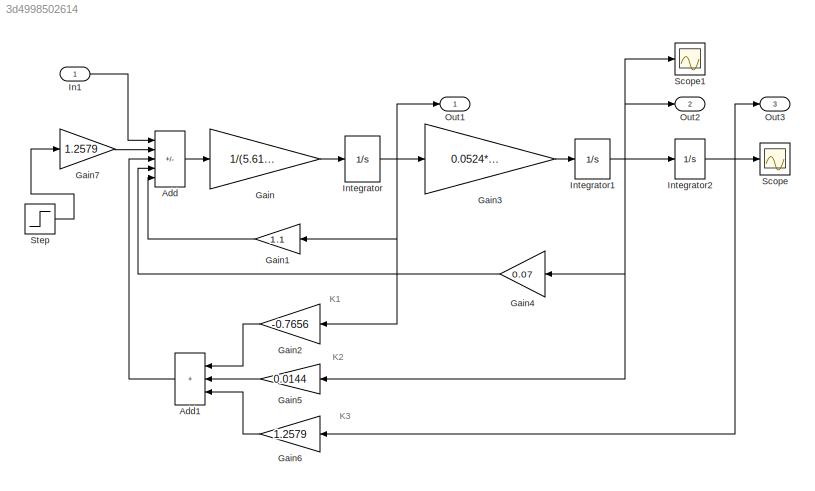
MODEL slx_3d4998502614
KIND model
CONFIG AbsTol = auto
CONFIG EnableMultiTasking = on
CONFIG FixedStep = auto
CONFIG MaxStep = auto
CONFIG MinStep = auto
CONFIG RelTol = 1e-3
CONFIG SampleTimeConstraint = Unconstrained
CONFIG SolverName = ode45
CONFIG StartTime = 0.0
CONFIG StopTime = 0.5
BLOCK [Sum] Add
  IconShape = rectangular
  Inputs = ++---
  Ports = [5, 1]
BLOCK [Sum] Add1
  IconShape = rectangular
  Inputs = +++
  Ports = [3, 1]
BLOCK [Gain] Gain
  Gain = 1/(5.61*10^-3)
BLOCK [Gain] Gain1
  Gain = 1.1
  NameLocation = top
BLOCK [Gain] Gain2
  Gain = -0.7656
  NameLocation = top
BLOCK [Gain] Gain3
  Gain = 0.0524*1/(4.44*10^-4)
BLOCK [Gain] Gain4
  Gain = 0.07
BLOCK [Gain] Gain5
  Gain = 0.0144
  NameLocation = top
BLOCK [Gain] Gain6
  Gain = 1.2579
  NameLocation = top
BLOCK [Gain] Gain7
  Gain = 1.2579
BLOCK [Inport] In1
BLOCK [Integrator] Integrator
  Ports = [1, 1]
BLOCK [Integrator] Integrator1
  Ports = [1, 1]
BLOCK [Integrator] Integrator2
  Ports = [1, 1]
BLOCK [Outport] Out1
BLOCK [Outport] Out2
  Port = 2
BLOCK [Outport] Out3
  Port = 3
BLOCK [Scope] Scope
  Floating = off
  NumInputPorts = 1
  Ports = [1]
  ScopeSpecificationString = Simulink.scopes.TimeScopeBlockCfg('CurrentConfiguration', extmgr.ConfigurationSet(extmgr.Configuration('Core','General UI',true),extmgr.Configuration('Core','Source UI',true),extmgr.Configuration('Sources','WiredSimulink',true,'DataLoggingSaveFormat','StructureWithTime','DataLoggingLimitDataPoints',true,'DataLoggingDecimation','1','DataLoggingDecimateData',true),extmgr.Configuration('Visuals','Tim...<+1673ch>
BLOCK [Scope] Scope1
  Floating = off
  NumInputPorts = 1
  Ports = [1]
  ScopeSpecificationString = Simulink.scopes.TimeScopeBlockCfg('CurrentConfiguration', extmgr.ConfigurationSet(extmgr.Configuration('Core','General UI',true),extmgr.Configuration('Core','Source UI',true),extmgr.Configuration('Sources','WiredSimulink',true,'DataLoggingVariableName','ScopeData1','DataLoggingSaveFormat','StructureWithTime','DataLoggingLimitDataPoints',true,'DataLoggingDecimation','1','DataLoggingDecimateData',tr...<+1710ch>
BLOCK [Step] Step
  SampleTime = 0
  Time = 0
ANNOTATION (root): K1
ANNOTATION (root): K2
ANNOTATION (root): K3
LINE Add1:1 -> Add:3
LINE Add:1 -> Gain:1
LINE Gain1:1 -> Add:5
LINE Gain2:1 -> Add1:1
LINE Gain3:1 -> Integrator1:1
LINE Gain4:1 -> Add:4
LINE Gain5:1 -> Add1:2
LINE Gain6:1 -> Add1:3
LINE Gain7:1 -> Add:2
LINE Gain:1 -> Integrator:1
LINE In1:1 -> Add:1
NET Integrator1:1 -> Gain4:1, Gain5:1, Integrator2:1, Out2:1, Scope1:1
NET Integrator2:1 -> Gain6:1, Out3:1, Scope:1
NET Integrator:1 -> Gain1:1, Gain2:1, Gain3:1, Out1:1
LINE Step:1 -> Gain7:1
note: NET lines group one-source signal fan-out (src -> all destinations, sorted); 1:1 wires keep LINE
